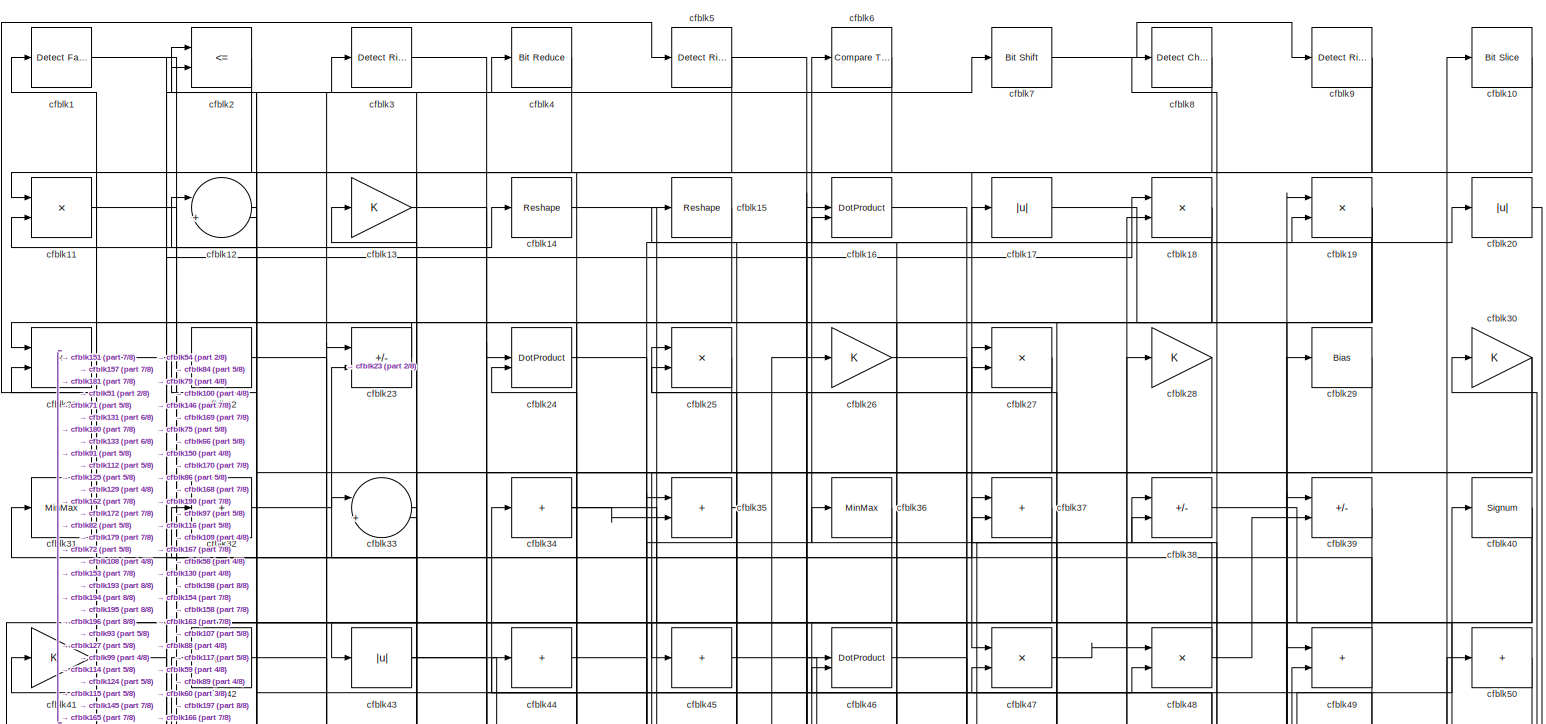
[diagram: root canvas - part 1/8, full width, top band]
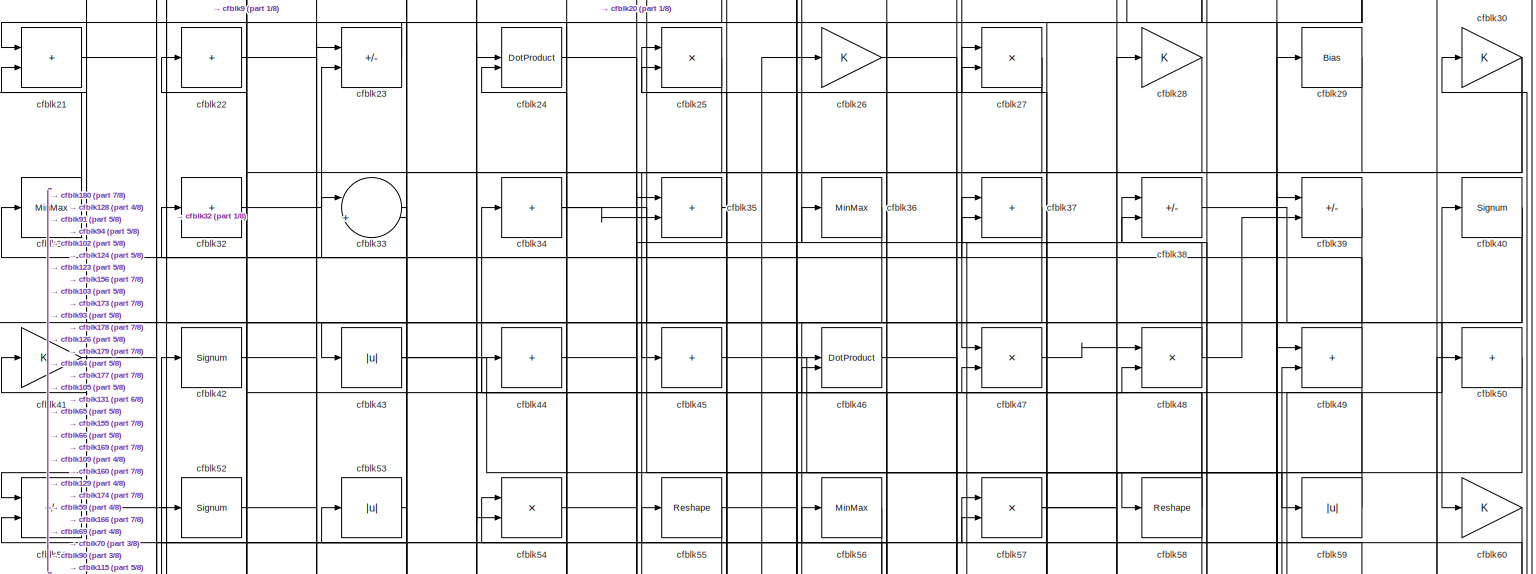
[diagram: root canvas - part 2/8, full width, top band]
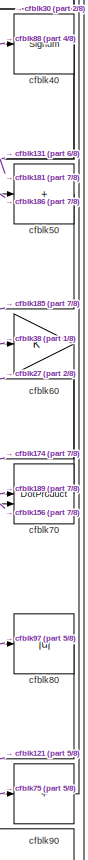
[diagram: root canvas - part 3/8, top right region]
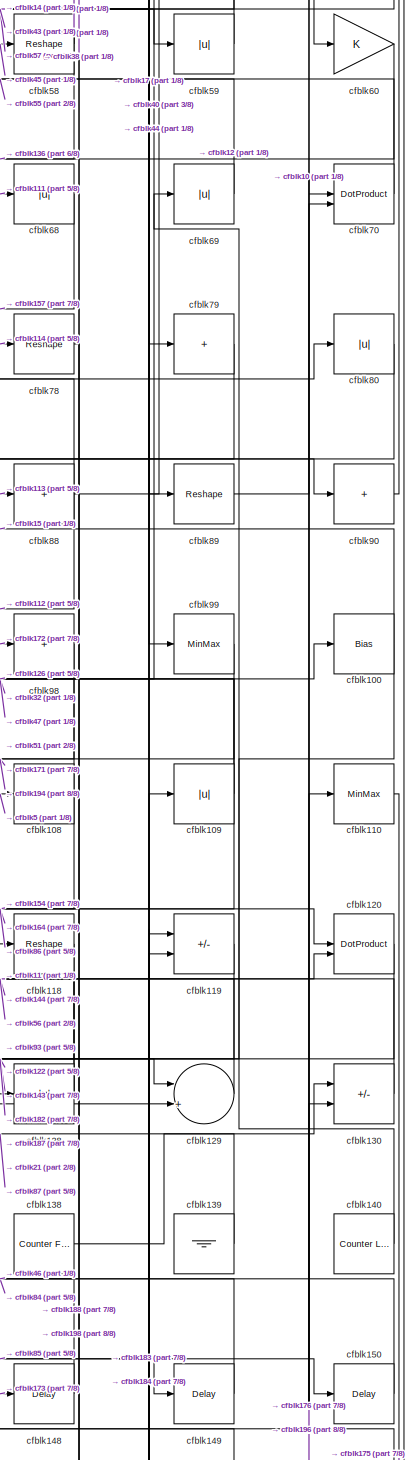
[diagram: root canvas - part 4/8, middle right region]
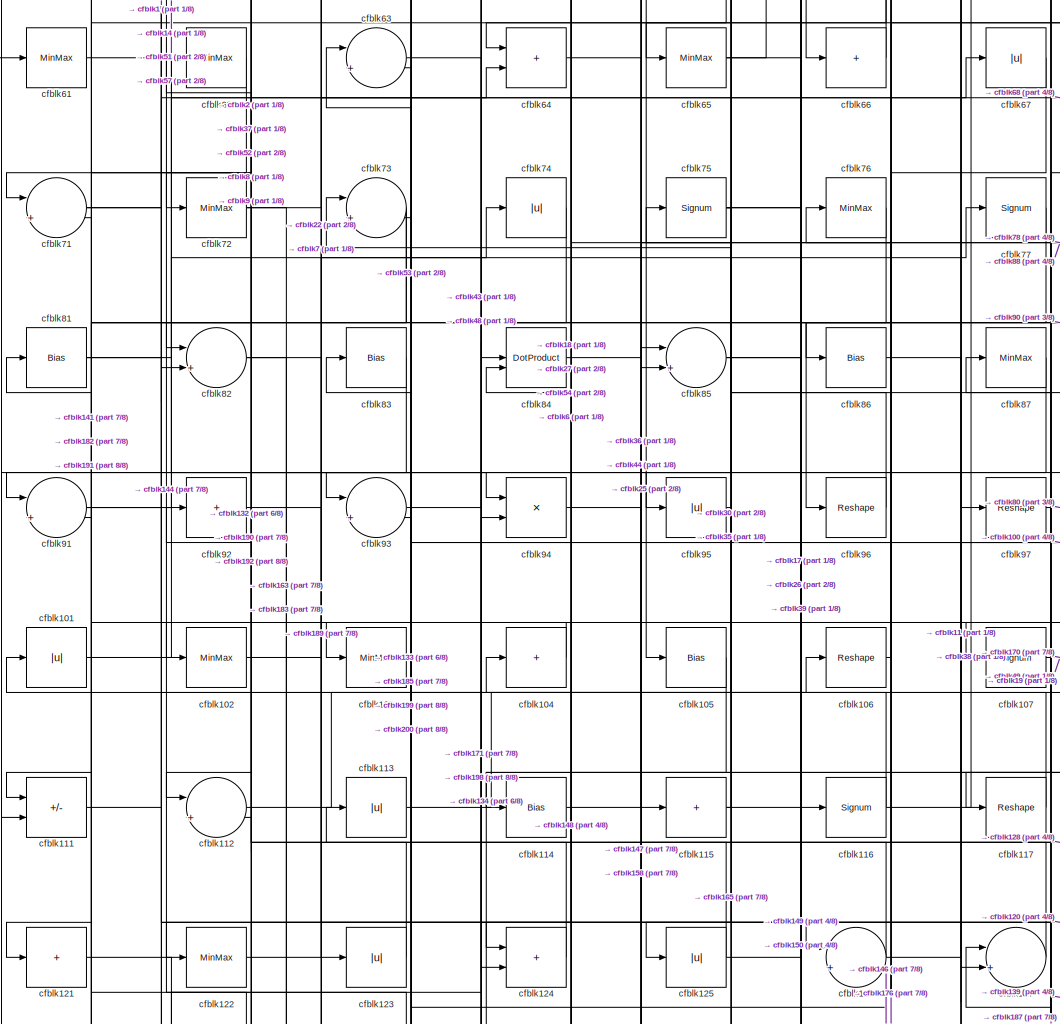
[diagram: root canvas - part 5/8, central region]
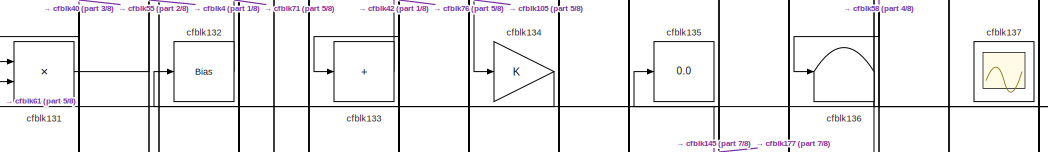
[diagram: root canvas - part 6/8, bottom center region]
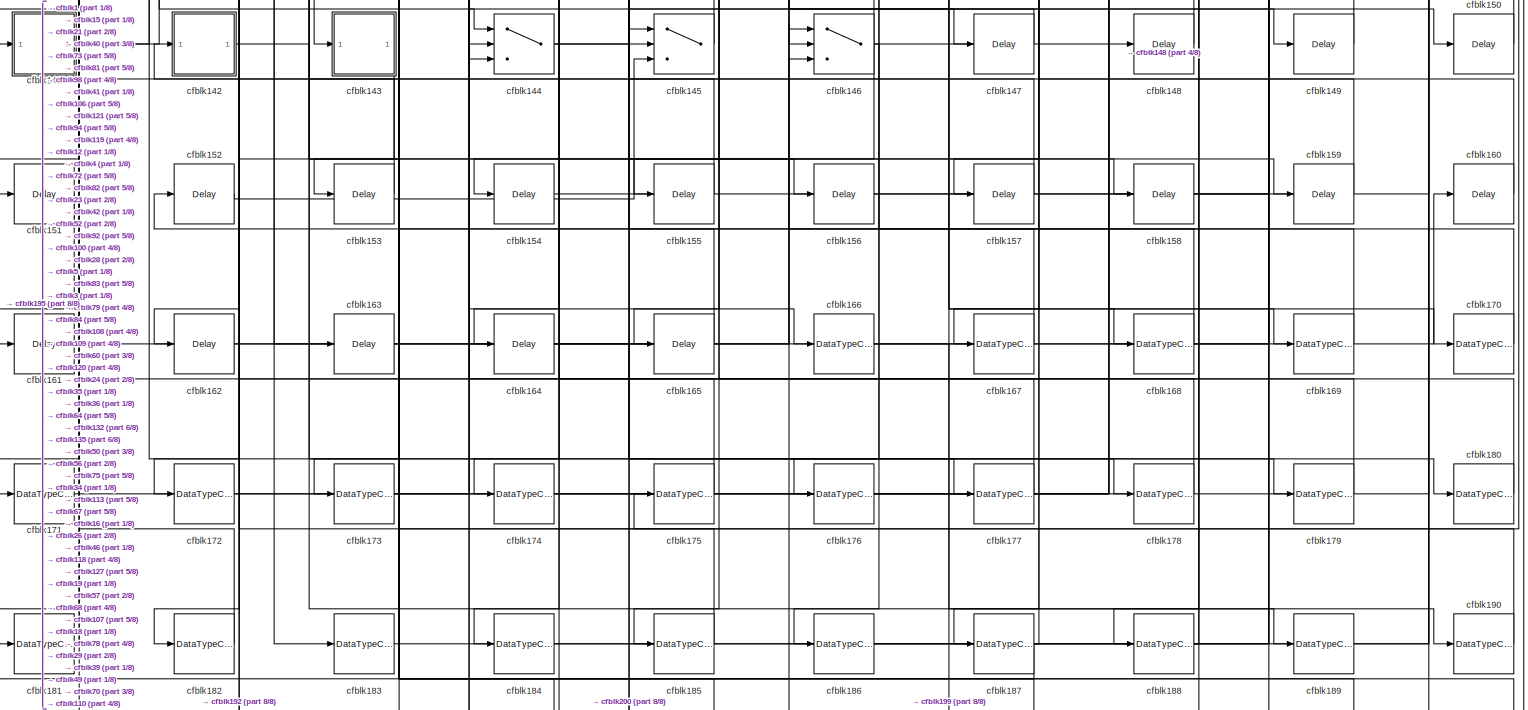
[diagram: root canvas - part 7/8, full width, bottom band]
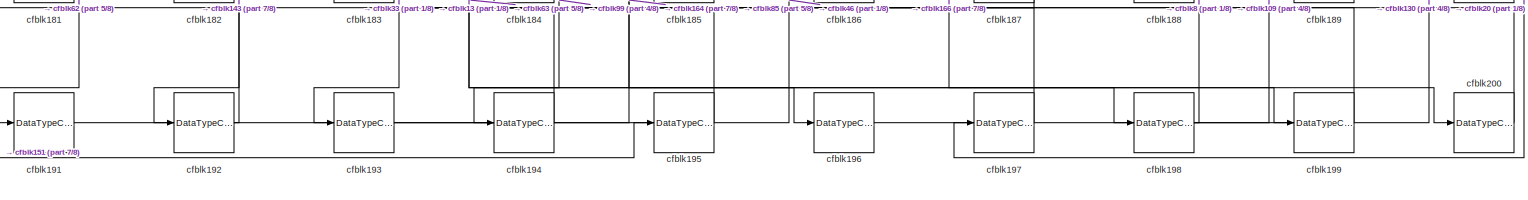
[diagram: root canvas - part 8/8, full width, bottom band]
MODEL slx_806e31ba4209
KIND model
CONFIG AbsTol = auto
CONFIG EnableMultiTasking = off
CONFIG FixedStep = auto
CONFIG MaxStep = auto
CONFIG MinStep = auto
CONFIG RelTol = 1e-3
CONFIG SampleTimeConstraint = Unconstrained
CONFIG SolverName = VariableStepAuto
CONFIG StartTime = 0.0
CONFIG StopTime = 10.0
BLOCK [Reference] cfblk1  REF=hdlsllib/Logic and Bit
Operations/Detect Fall
Nonpositive
  SourceBlock = hdlsllib/Logic and Bit\nOperations/Detect Fall\nNonpositive
  SourceType = Detect Fall Nonpositive
BLOCK [Reference] cfblk10  REF=hdlsllib/Logic and Bit
Operations/Bit Slice
  SourceBlock = hdlsllib/Logic and Bit\nOperations/Bit Slice
  SourceType = Bit Slice
BLOCK [Bias] cfblk100
  Bias = 0.0
  SaturateOnIntegerOverflow = off
BLOCK [Abs] cfblk101
  SaturateOnIntegerOverflow = off
BLOCK [MinMax] cfblk102
BLOCK [MinMax] cfblk103
BLOCK [Sum] cfblk104
  IconShape = rectangular
  Inputs = +
BLOCK [Bias] cfblk105
  Bias = 0.0
  SaturateOnIntegerOverflow = off
BLOCK [Reshape] cfblk106
BLOCK [Signum] cfblk107
BLOCK [Sum] cfblk108
  IconShape = rectangular
  Inputs = +
BLOCK [Abs] cfblk109
  SaturateOnIntegerOverflow = off
BLOCK [Product] cfblk11
  Inputs = */
  RndMeth = Zero
  SaturateOnIntegerOverflow = on
BLOCK [MinMax] cfblk110
BLOCK [Sum] cfblk111
  IconShape = rectangular
  Inputs = +-
BLOCK [Sum] cfblk112
  Inputs = |++
BLOCK [Abs] cfblk113
  SaturateOnIntegerOverflow = off
BLOCK [Bias] cfblk114
  Bias = 0.0
  SaturateOnIntegerOverflow = off
BLOCK [Sum] cfblk115
  IconShape = rectangular
  Inputs = +
BLOCK [Signum] cfblk116
BLOCK [Reshape] cfblk117
BLOCK [Reshape] cfblk118
BLOCK [Sum] cfblk119
  IconShape = rectangular
  Inputs = +-
BLOCK [Sum] cfblk12
  Inputs = |++
BLOCK [DotProduct] cfblk120
  OutDataTypeStr = Inherit: Inherit via internal rule
BLOCK [Sum] cfblk121
  IconShape = rectangular
  Inputs = +
BLOCK [MinMax] cfblk122
BLOCK [Abs] cfblk123
  SaturateOnIntegerOverflow = off
BLOCK [Sum] cfblk124
  IconShape = rectangular
BLOCK [Abs] cfblk125
  SaturateOnIntegerOverflow = off
BLOCK [Sum] cfblk126
  Inputs = |++
BLOCK [Sum] cfblk127
  Inputs = |++
BLOCK [Abs] cfblk128
  SaturateOnIntegerOverflow = off
BLOCK [Sum] cfblk129
  Inputs = |++
BLOCK [Gain] cfblk13
BLOCK [Sum] cfblk130
  IconShape = rectangular
  Inputs = +-
BLOCK [Product] cfblk131
  Inputs = */
  RndMeth = Zero
  SaturateOnIntegerOverflow = on
BLOCK [Bias] cfblk132
  Bias = 0.0
  SaturateOnIntegerOverflow = off
BLOCK [Sum] cfblk133
  IconShape = rectangular
  Inputs = +
BLOCK [Gain] cfblk134
BLOCK [Display] cfblk135
  Decimation = 1
BLOCK [Terminator] cfblk136
BLOCK [Scope] cfblk137
  Floating = on
  NumInputPorts = 1
  ScopeSpecificationString = Simulink.scopes.TimeScopeBlockCfg('CurrentConfiguration', extmgr.ConfigurationSet(extmgr.Configuration('Core','General UI',true,'FigureColor',[0.156862745098039 0.156862745098039 0.156862745098039]),extmgr.Configuration('Core','Source UI',true),extmgr.Configuration('Sources','WiredSimulink',true,'DataLoggingVariableName','ScopeData1','DataLoggingSaveFormat','StructureWithTime','DataLoggingLimitDat...<+2713ch>
BLOCK [Reference] cfblk138  REF=hdlsllib/Sources/Counter
Free-Running
  SourceBlock = hdlsllib/Sources/Counter\nFree-Running
  SourceType = Counter Free-Running
BLOCK [Ground] cfblk139
BLOCK [Reshape] cfblk14
BLOCK [Reference] cfblk140  REF=hdlsllib/Sources/Counter
Limited
  SourceBlock = hdlsllib/Sources/Counter\nLimited
  SourceType = Counter Limited
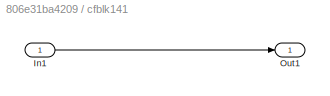
BLOCK [SubSystem] cfblk141
  LibrarySourceBlock = hdlsllib/Ports &\nSubsystems/Subsystem
BLOCK [Inport] cfblk141/In1
BLOCK [Outport] cfblk141/Out1
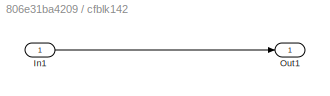
BLOCK [SubSystem] cfblk142
  LibrarySourceBlock = hdlsllib/Ports &\nSubsystems/Subsystem
BLOCK [Inport] cfblk142/In1
BLOCK [Outport] cfblk142/Out1
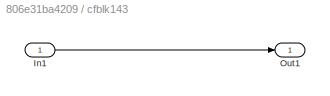
BLOCK [SubSystem] cfblk143
  LibrarySourceBlock = hdlsllib/Ports &\nSubsystems/Subsystem
BLOCK [Inport] cfblk143/In1
BLOCK [Outport] cfblk143/Out1
BLOCK [Switch] cfblk144
  InputSameDT = off
  SaturateOnIntegerOverflow = off
BLOCK [Switch] cfblk145
  InputSameDT = off
  SaturateOnIntegerOverflow = off
BLOCK [Switch] cfblk146
  InputSameDT = off
  SaturateOnIntegerOverflow = off
BLOCK [Delay] cfblk147
  InputPortMap = u0
  SampleTime = 1
BLOCK [Delay] cfblk148
  InputPortMap = u0
  SampleTime = 1
BLOCK [Delay] cfblk149
  InputPortMap = u0
  SampleTime = 1
BLOCK [Reshape] cfblk15
BLOCK [Delay] cfblk150
  InputPortMap = u0
  SampleTime = 1
BLOCK [Delay] cfblk151
  InputPortMap = u0
  SampleTime = 1
BLOCK [Delay] cfblk152
  InputPortMap = u0
  SampleTime = 1
BLOCK [Delay] cfblk153
  InputPortMap = u0
  SampleTime = 1
BLOCK [Delay] cfblk154
  InputPortMap = u0
  SampleTime = 1
BLOCK [Delay] cfblk155
  InputPortMap = u0
  SampleTime = 1
BLOCK [Delay] cfblk156
  InputPortMap = u0
  SampleTime = 1
BLOCK [Delay] cfblk157
  InputPortMap = u0
  SampleTime = 1
BLOCK [Delay] cfblk158
  InputPortMap = u0
  SampleTime = 1
BLOCK [Delay] cfblk159
  InputPortMap = u0
  SampleTime = 1
BLOCK [DotProduct] cfblk16
  OutDataTypeStr = Inherit: Inherit via internal rule
BLOCK [Delay] cfblk160
  InputPortMap = u0
  SampleTime = 1
BLOCK [Delay] cfblk161
  InputPortMap = u0
  SampleTime = 1
BLOCK [Delay] cfblk162
  InputPortMap = u0
  SampleTime = 1
BLOCK [Delay] cfblk163
  InputPortMap = u0
  SampleTime = 1
BLOCK [Delay] cfblk164
  InputPortMap = u0
  SampleTime = 1
BLOCK [Delay] cfblk165
  InputPortMap = u0
  SampleTime = 1
BLOCK [DataTypeConversion] cfblk166
  RndMeth = Floor
  SaturateOnIntegerOverflow = off
BLOCK [DataTypeConversion] cfblk167
  OutDataTypeStr = uint8
  RndMeth = Floor
  SaturateOnIntegerOverflow = off
BLOCK [DataTypeConversion] cfblk168
  RndMeth = Floor
  SaturateOnIntegerOverflow = off
BLOCK [DataTypeConversion] cfblk169
  OutDataTypeStr = uint8
  RndMeth = Floor
  SaturateOnIntegerOverflow = off
BLOCK [Abs] cfblk17
  SaturateOnIntegerOverflow = off
BLOCK [DataTypeConversion] cfblk170
  OutDataTypeStr = uint8
  RndMeth = Floor
  SaturateOnIntegerOverflow = off
BLOCK [DataTypeConversion] cfblk171
  OutDataTypeStr = uint8
  RndMeth = Floor
  SaturateOnIntegerOverflow = off
BLOCK [DataTypeConversion] cfblk172
  OutDataTypeStr = uint8
  RndMeth = Floor
  SaturateOnIntegerOverflow = off
BLOCK [DataTypeConversion] cfblk173
  OutDataTypeStr = uint8
  RndMeth = Floor
  SaturateOnIntegerOverflow = off
BLOCK [DataTypeConversion] cfblk174
  OutDataTypeStr = uint8
  RndMeth = Floor
  SaturateOnIntegerOverflow = off
BLOCK [DataTypeConversion] cfblk175
  OutDataTypeStr = uint8
  RndMeth = Floor
  SaturateOnIntegerOverflow = off
BLOCK [DataTypeConversion] cfblk176
  OutDataTypeStr = uint8
  RndMeth = Floor
  SaturateOnIntegerOverflow = off
BLOCK [DataTypeConversion] cfblk177
  OutDataTypeStr = uint8
  RndMeth = Floor
  SaturateOnIntegerOverflow = off
BLOCK [DataTypeConversion] cfblk178
  OutDataTypeStr = uint8
  RndMeth = Floor
  SaturateOnIntegerOverflow = off
BLOCK [DataTypeConversion] cfblk179
  OutDataTypeStr = uint8
  RndMeth = Floor
  SaturateOnIntegerOverflow = off
BLOCK [Product] cfblk18
  Inputs = */
  RndMeth = Zero
  SaturateOnIntegerOverflow = on
BLOCK [DataTypeConversion] cfblk180
  OutDataTypeStr = uint8
  RndMeth = Floor
  SaturateOnIntegerOverflow = off
BLOCK [DataTypeConversion] cfblk181
  OutDataTypeStr = uint8
  RndMeth = Floor
  SaturateOnIntegerOverflow = off
BLOCK [DataTypeConversion] cfblk182
  OutDataTypeStr = uint8
  RndMeth = Floor
  SaturateOnIntegerOverflow = off
BLOCK [DataTypeConversion] cfblk183
  OutDataTypeStr = uint8
  RndMeth = Floor
  SaturateOnIntegerOverflow = off
BLOCK [DataTypeConversion] cfblk184
  OutDataTypeStr = uint8
  RndMeth = Floor
  SaturateOnIntegerOverflow = off
BLOCK [DataTypeConversion] cfblk185
  OutDataTypeStr = uint8
  RndMeth = Floor
  SaturateOnIntegerOverflow = off
BLOCK [DataTypeConversion] cfblk186
  OutDataTypeStr = uint8
  RndMeth = Floor
  SaturateOnIntegerOverflow = off
BLOCK [DataTypeConversion] cfblk187
  RndMeth = Floor
  SaturateOnIntegerOverflow = off
BLOCK [DataTypeConversion] cfblk188
  OutDataTypeStr = uint8
  RndMeth = Floor
  SaturateOnIntegerOverflow = off
BLOCK [DataTypeConversion] cfblk189
  OutDataTypeStr = uint8
  RndMeth = Floor
  SaturateOnIntegerOverflow = off
BLOCK [Product] cfblk19
  Inputs = */
  RndMeth = Zero
  SaturateOnIntegerOverflow = on
BLOCK [DataTypeConversion] cfblk190
  OutDataTypeStr = uint8
  RndMeth = Floor
  SaturateOnIntegerOverflow = off
BLOCK [DataTypeConversion] cfblk191
  OutDataTypeStr = uint8
  RndMeth = Floor
  SaturateOnIntegerOverflow = off
BLOCK [DataTypeConversion] cfblk192
  OutDataTypeStr = uint8
  RndMeth = Floor
  SaturateOnIntegerOverflow = off
BLOCK [DataTypeConversion] cfblk193
  OutDataTypeStr = uint8
  RndMeth = Floor
  SaturateOnIntegerOverflow = off
BLOCK [DataTypeConversion] cfblk194
  OutDataTypeStr = uint8
  RndMeth = Floor
  SaturateOnIntegerOverflow = off
BLOCK [DataTypeConversion] cfblk195
  OutDataTypeStr = uint8
  RndMeth = Floor
  SaturateOnIntegerOverflow = off
BLOCK [DataTypeConversion] cfblk196
  OutDataTypeStr = uint8
  RndMeth = Floor
  SaturateOnIntegerOverflow = off
BLOCK [DataTypeConversion] cfblk197
  OutDataTypeStr = uint8
  RndMeth = Floor
  SaturateOnIntegerOverflow = off
BLOCK [DataTypeConversion] cfblk198
  RndMeth = Floor
  SaturateOnIntegerOverflow = off
BLOCK [DataTypeConversion] cfblk199
  OutDataTypeStr = uint8
  RndMeth = Floor
  SaturateOnIntegerOverflow = off
BLOCK [RelationalOperator] cfblk2
  InputSameDT = off
  Operator = <=
  OutDataTypeStr = boolean
BLOCK [Abs] cfblk20
  SaturateOnIntegerOverflow = off
BLOCK [DataTypeConversion] cfblk200
  OutDataTypeStr = uint8
  RndMeth = Floor
  SaturateOnIntegerOverflow = off
BLOCK [Sum] cfblk21
  IconShape = rectangular
BLOCK [Sum] cfblk22
  IconShape = rectangular
  Inputs = +
BLOCK [Sum] cfblk23
  IconShape = rectangular
  Inputs = +-
BLOCK [DotProduct] cfblk24
  OutDataTypeStr = Inherit: Inherit via internal rule
BLOCK [Product] cfblk25
  Inputs = */
  RndMeth = Zero
  SaturateOnIntegerOverflow = on
BLOCK [Gain] cfblk26
BLOCK [Product] cfblk27
  Inputs = */
  RndMeth = Zero
  SaturateOnIntegerOverflow = on
BLOCK [Gain] cfblk28
BLOCK [Bias] cfblk29
  Bias = 0.0
  SaturateOnIntegerOverflow = off
BLOCK [Reference] cfblk3  REF=hdlsllib/Logic and Bit
Operations/Detect Rise
Positive
  SourceBlock = hdlsllib/Logic and Bit\nOperations/Detect Rise\nPositive
  SourceType = Detect Rise Positive
BLOCK [Gain] cfblk30
BLOCK [MinMax] cfblk31
BLOCK [Sum] cfblk32
  IconShape = rectangular
  Inputs = +
BLOCK [Sum] cfblk33
  Inputs = |++
BLOCK [Sum] cfblk34
  IconShape = rectangular
  Inputs = +
BLOCK [Sum] cfblk35
  IconShape = rectangular
BLOCK [MinMax] cfblk36
BLOCK [Sum] cfblk37
  IconShape = rectangular
BLOCK [Sum] cfblk38
  IconShape = rectangular
  Inputs = +-
BLOCK [Sum] cfblk39
  IconShape = rectangular
  Inputs = +-
BLOCK [Reference] cfblk4  REF=hdlsllib/Logic and Bit
Operations/Bit Reduce
  SourceBlock = hdlsllib/Logic and Bit\nOperations/Bit Reduce
  SourceType = Bit Reduce
BLOCK [Signum] cfblk40
BLOCK [Gain] cfblk41
BLOCK [Signum] cfblk42
BLOCK [Abs] cfblk43
  SaturateOnIntegerOverflow = off
BLOCK [Sum] cfblk44
  IconShape = rectangular
  Inputs = +
BLOCK [Sum] cfblk45
  IconShape = rectangular
  Inputs = +
BLOCK [DotProduct] cfblk46
  OutDataTypeStr = Inherit: Inherit via internal rule
BLOCK [Product] cfblk47
  Inputs = */
  RndMeth = Zero
  SaturateOnIntegerOverflow = on
BLOCK [Product] cfblk48
  Inputs = */
  RndMeth = Zero
  SaturateOnIntegerOverflow = on
BLOCK [Sum] cfblk49
  IconShape = rectangular
BLOCK [Reference] cfblk5  REF=hdlsllib/Logic and Bit
Operations/Detect Rise
Positive
  SourceBlock = hdlsllib/Logic and Bit\nOperations/Detect Rise\nPositive
  SourceType = Detect Rise Positive
BLOCK [Sum] cfblk50
  IconShape = rectangular
  Inputs = +
BLOCK [Sum] cfblk51
  IconShape = rectangular
  Inputs = +-
BLOCK [Signum] cfblk52
BLOCK [Abs] cfblk53
  SaturateOnIntegerOverflow = off
BLOCK [Product] cfblk54
  Inputs = */
  RndMeth = Zero
  SaturateOnIntegerOverflow = on
BLOCK [Reshape] cfblk55
BLOCK [MinMax] cfblk56
BLOCK [Product] cfblk57
  Inputs = */
  RndMeth = Zero
  SaturateOnIntegerOverflow = on
BLOCK [Reshape] cfblk58
BLOCK [Abs] cfblk59
  SaturateOnIntegerOverflow = off
BLOCK [Reference] cfblk6  REF=hdlsllib/Logic and Bit
Operations/Compare
To Zero
  SourceBlock = hdlsllib/Logic and Bit\nOperations/Compare\nTo Zero
  SourceType = Compare To Zero
BLOCK [Gain] cfblk60
BLOCK [MinMax] cfblk61
BLOCK [MinMax] cfblk62
BLOCK [Sum] cfblk63
  Inputs = |++
BLOCK [Sum] cfblk64
  IconShape = rectangular
BLOCK [MinMax] cfblk65
BLOCK [Sum] cfblk66
  IconShape = rectangular
  Inputs = +
BLOCK [Abs] cfblk67
  SaturateOnIntegerOverflow = off
BLOCK [Abs] cfblk68
  SaturateOnIntegerOverflow = off
BLOCK [Abs] cfblk69
  SaturateOnIntegerOverflow = off
BLOCK [Reference] cfblk7  REF=hdlsllib/Logic and Bit
Operations/Bit Shift
  SourceBlock = hdlsllib/Logic and Bit\nOperations/Bit Shift
  SourceType = Bit Shift
BLOCK [DotProduct] cfblk70
  OutDataTypeStr = Inherit: Inherit via internal rule
BLOCK [Sum] cfblk71
  Inputs = |++
BLOCK [MinMax] cfblk72
BLOCK [Sum] cfblk73
  Inputs = |++
BLOCK [Abs] cfblk74
  SaturateOnIntegerOverflow = off
BLOCK [Signum] cfblk75
BLOCK [MinMax] cfblk76
BLOCK [Signum] cfblk77
BLOCK [Reshape] cfblk78
BLOCK [Sum] cfblk79
  IconShape = rectangular
  Inputs = +
BLOCK [Reference] cfblk8  REF=simulink/Logic and Bit
Operations/Detect
Change
  LibrarySourceBlock = hdlsllib/Logic and Bit\nOperations/Detect\nChange
  SourceBlock = simulink/Logic and Bit\nOperations/Detect\nChange
  SourceType = Detect Change
BLOCK [Abs] cfblk80
  SaturateOnIntegerOverflow = off
BLOCK [Bias] cfblk81
  Bias = 0.0
  SaturateOnIntegerOverflow = off
BLOCK [Sum] cfblk82
  Inputs = |++
BLOCK [Bias] cfblk83
  Bias = 0.0
  SaturateOnIntegerOverflow = off
BLOCK [DotProduct] cfblk84
  OutDataTypeStr = Inherit: Inherit via internal rule
BLOCK [Sum] cfblk85
  Inputs = |++
BLOCK [Bias] cfblk86
  Bias = 0.0
  SaturateOnIntegerOverflow = off
BLOCK [MinMax] cfblk87
BLOCK [Sum] cfblk88
  IconShape = rectangular
  Inputs = +
BLOCK [Reshape] cfblk89
BLOCK [Reference] cfblk9  REF=hdlsllib/Logic and Bit
Operations/Detect Rise
Positive
  SourceBlock = hdlsllib/Logic and Bit\nOperations/Detect Rise\nPositive
  SourceType = Detect Rise Positive
BLOCK [Sum] cfblk90
  IconShape = rectangular
  Inputs = +
BLOCK [Sum] cfblk91
  Inputs = |++
BLOCK [Sum] cfblk92
  IconShape = rectangular
  Inputs = +
BLOCK [Sum] cfblk93
  Inputs = |++
BLOCK [Product] cfblk94
  Inputs = */
  RndMeth = Zero
  SaturateOnIntegerOverflow = on
BLOCK [Abs] cfblk95
  SaturateOnIntegerOverflow = off
BLOCK [Reshape] cfblk96
BLOCK [Reshape] cfblk97
BLOCK [Sum] cfblk98
  IconShape = rectangular
  Inputs = +
BLOCK [MinMax] cfblk99
NET cfblk100:1 -> cfblk143:1, cfblk15:1
LINE cfblk101:1 -> cfblk77:1
LINE cfblk102:1 -> cfblk74:1
LINE cfblk103:1 -> cfblk53:1
LINE cfblk104:1 -> cfblk103:1
LINE cfblk105:1 -> cfblk134:1
LINE cfblk106:1 -> cfblk76:1
NET cfblk107:1 -> cfblk170:1, cfblk49:2
NET cfblk108:1 -> cfblk154:1, cfblk32:1
NET cfblk109:1 -> cfblk164:1, cfblk47:2, cfblk51:2
LINE cfblk10:1 -> cfblk47:1
LINE cfblk110:1 -> cfblk175:1
LINE cfblk111:1 -> cfblk68:1
LINE cfblk112:1 -> cfblk85:1
LINE cfblk113:1 -> cfblk88:1
LINE cfblk114:1 -> cfblk78:1
NET cfblk115:1 -> cfblk19:2, cfblk25:1
NET cfblk116:1 -> cfblk38:1, cfblk75:1
LINE cfblk117:1 -> cfblk2:1
LINE cfblk118:1 -> cfblk187:1
LINE cfblk119:1 -> cfblk182:1
LINE cfblk11:1 -> cfblk97:1
LINE cfblk120:1 -> cfblk122:1
LINE cfblk121:1 -> cfblk144:1
LINE cfblk122:1 -> cfblk64:2
LINE cfblk123:1 -> cfblk101:1
LINE cfblk124:1 -> cfblk52:1
NET cfblk125:1 -> cfblk116:1, cfblk2:2
NET cfblk126:1 -> cfblk100:1, cfblk54:1
LINE cfblk127:1 -> cfblk73:2
NET cfblk128:1 -> cfblk56:1, cfblk93:2
LINE cfblk129:1 -> cfblk11:2
LINE cfblk12:1 -> cfblk172:1
LINE cfblk130:1 -> cfblk38:2
LINE cfblk131:1 -> cfblk4:1
LINE cfblk132:1 -> cfblk71:2
LINE cfblk133:1 -> cfblk42:1
LINE cfblk134:1 -> cfblk61:1
LINE cfblk138:1 -> cfblk130:1
LINE cfblk139:1 -> cfblk87:1
LINE cfblk13:1 -> cfblk196:1
LINE cfblk140:1 -> cfblk69:1
LINE cfblk141/In1:1 -> cfblk141/Out1:1
NET cfblk141:1 -> cfblk106:1, cfblk94:2
LINE cfblk142/In1:1 -> cfblk142/Out1:1
LINE cfblk142:1 -> cfblk159:1
LINE cfblk143/In1:1 -> cfblk143/Out1:1
LINE cfblk143:1 -> cfblk192:1
NET cfblk144:1 -> cfblk120:2, cfblk178:1
LINE cfblk145:1 -> cfblk132:1
NET cfblk146:1 -> cfblk113:1, cfblk184:1, cfblk186:1, cfblk18:2
LINE cfblk147:1 -> cfblk144:2
LINE cfblk148:1 -> cfblk84:2
LINE cfblk149:1 -> cfblk126:2
LINE cfblk14:1 -> cfblk79:1
LINE cfblk150:1 -> cfblk46:2
LINE cfblk151:1 -> cfblk195:1
LINE cfblk152:1 -> cfblk145:3
LINE cfblk153:1 -> cfblk12:2
LINE cfblk154:1 -> cfblk49:1
LINE cfblk155:1 -> cfblk23:1
LINE cfblk156:1 -> cfblk70:2
LINE cfblk157:1 -> cfblk1:1
LINE cfblk158:1 -> cfblk39:1
LINE cfblk159:1 -> cfblk145:1
LINE cfblk15:1 -> cfblk151:1
LINE cfblk160:1 -> cfblk57:2
LINE cfblk161:1 -> cfblk146:3
LINE cfblk162:1 -> cfblk146:1
LINE cfblk163:1 -> cfblk19:1
LINE cfblk164:1 -> cfblk200:1
LINE cfblk165:1 -> cfblk35:1
NET cfblk166:1 -> cfblk199:1, cfblk29:1
LINE cfblk167:1 -> cfblk3:1
NET cfblk168:1 -> cfblk142:1, cfblk160:1
LINE cfblk169:1 -> cfblk16:1
LINE cfblk16:1 -> cfblk168:1
LINE cfblk170:1 -> cfblk16:2
LINE cfblk171:1 -> cfblk84:1
LINE cfblk172:1 -> cfblk98:1
LINE cfblk173:1 -> cfblk148:1
LINE cfblk174:1 -> cfblk28:1
LINE cfblk175:1 -> cfblk152:1
LINE cfblk176:1 -> cfblk110:1
LINE cfblk177:1 -> cfblk135:1
LINE cfblk178:1 -> cfblk24:1
LINE cfblk179:1 -> cfblk24:2
LINE cfblk17:1 -> cfblk89:1
LINE cfblk180:1 -> cfblk21:2
LINE cfblk181:1 -> cfblk41:1
LINE cfblk182:1 -> cfblk81:1
LINE cfblk183:1 -> cfblk119:1
LINE cfblk184:1 -> cfblk119:2
LINE cfblk185:1 -> cfblk83:1
LINE cfblk186:1 -> cfblk50:1
NET cfblk187:1 -> cfblk127:1, cfblk161:1
LINE cfblk188:1 -> cfblk118:1
LINE cfblk189:1 -> cfblk70:1
NET cfblk18:1 -> cfblk114:1, cfblk43:1
LINE cfblk190:1 -> cfblk92:1
LINE cfblk191:1 -> cfblk85:2
LINE cfblk192:1 -> cfblk62:1
LINE cfblk193:1 -> cfblk46:1
LINE cfblk194:1 -> cfblk33:1
LINE cfblk195:1 -> cfblk33:2
LINE cfblk196:1 -> cfblk130:2
LINE cfblk197:1 -> cfblk13:1
NET cfblk198:1 -> cfblk109:1, cfblk8:1
LINE cfblk199:1 -> cfblk63:1
NET cfblk19:1 -> cfblk167:1, cfblk72:1, cfblk86:1
NET cfblk1:1 -> cfblk124:2, cfblk45:1
LINE cfblk200:1 -> cfblk63:2
LINE cfblk20:1 -> cfblk197:1
LINE cfblk21:1 -> cfblk128:1
LINE cfblk22:1 -> cfblk123:1
LINE cfblk23:1 -> cfblk21:1
LINE cfblk24:1 -> cfblk177:1
LINE cfblk25:1 -> cfblk105:1
LINE cfblk26:1 -> cfblk169:1
NET cfblk27:1 -> cfblk25:2, cfblk64:1
LINE cfblk28:1 -> cfblk173:1
LINE cfblk29:1 -> cfblk54:2
LINE cfblk2:1 -> cfblk11:1
NET cfblk30:1 -> cfblk102:1, cfblk65:1
LINE cfblk31:1 -> cfblk5:1
LINE cfblk32:1 -> cfblk23:2
LINE cfblk33:1 -> cfblk193:1
NET cfblk34:1 -> cfblk146:2, cfblk35:2
LINE cfblk35:1 -> cfblk125:1
LINE cfblk36:1 -> cfblk145:2
LINE cfblk37:1 -> cfblk112:1
LINE cfblk38:1 -> cfblk60:1
LINE cfblk39:1 -> cfblk66:1
LINE cfblk3:1 -> cfblk166:1
NET cfblk40:1 -> cfblk131:2, cfblk181:1
LINE cfblk41:1 -> cfblk180:1
LINE cfblk42:1 -> cfblk179:1
NET cfblk43:1 -> cfblk127:2, cfblk99:1
LINE cfblk44:1 -> cfblk115:1
LINE cfblk45:1 -> cfblk58:1
LINE cfblk46:1 -> cfblk190:1
LINE cfblk47:1 -> cfblk48:1
NET cfblk48:1 -> cfblk39:2, cfblk6:1
NET cfblk49:1 -> cfblk117:1, cfblk31:1
LINE cfblk4:1 -> cfblk162:1
LINE cfblk50:1 -> cfblk185:1
LINE cfblk51:1 -> cfblk94:1
LINE cfblk52:1 -> cfblk156:1
LINE cfblk53:1 -> cfblk93:1
LINE cfblk54:1 -> cfblk20:1
NET cfblk55:1 -> cfblk129:1, cfblk131:1
LINE cfblk56:1 -> cfblk155:1
NET cfblk57:1 -> cfblk129:2, cfblk59:1
NET cfblk58:1 -> cfblk136:1, cfblk34:1, cfblk37:2
LINE cfblk59:1 -> cfblk12:1
NET cfblk5:1 -> cfblk108:1, cfblk153:1
LINE cfblk60:1 -> cfblk174:1
LINE cfblk61:1 -> cfblk82:2
LINE cfblk62:1 -> cfblk191:1
LINE cfblk63:1 -> cfblk198:1
LINE cfblk64:1 -> cfblk147:1
NET cfblk65:1 -> cfblk26:1, cfblk27:2
LINE cfblk66:1 -> cfblk22:1
LINE cfblk67:1 -> cfblk176:1
LINE cfblk68:1 -> cfblk157:1
LINE cfblk69:1 -> cfblk55:1
LINE cfblk6:1 -> cfblk124:1
LINE cfblk70:1 -> cfblk27:1
NET cfblk71:1 -> cfblk18:1, cfblk37:1
NET cfblk72:1 -> cfblk163:1, cfblk7:1
NET cfblk73:1 -> cfblk111:1, cfblk141:1
LINE cfblk74:1 -> cfblk91:1
NET cfblk75:1 -> cfblk165:1, cfblk17:1, cfblk90:1, cfblk95:1
LINE cfblk76:1 -> cfblk133:1
LINE cfblk77:1 -> cfblk96:1
LINE cfblk78:1 -> cfblk188:1
LINE cfblk79:1 -> cfblk144:3
LINE cfblk7:1 -> cfblk9:1
LINE cfblk80:1 -> cfblk121:1
NET cfblk81:1 -> cfblk107:1, cfblk67:1
NET cfblk82:1 -> cfblk126:1, cfblk183:1
LINE cfblk83:1 -> cfblk91:2
LINE cfblk84:1 -> cfblk36:1
NET cfblk85:1 -> cfblk149:1, cfblk150:1
LINE cfblk86:1 -> cfblk120:1
LINE cfblk87:1 -> cfblk111:2
NET cfblk88:1 -> cfblk112:2, cfblk40:1, cfblk44:1
LINE cfblk89:1 -> cfblk10:1
LINE cfblk8:1 -> cfblk82:1
LINE cfblk90:1 -> cfblk30:1
NET cfblk91:1 -> cfblk14:1, cfblk57:1
LINE cfblk92:1 -> cfblk189:1
LINE cfblk93:1 -> cfblk48:2
LINE cfblk94:1 -> cfblk158:1
LINE cfblk95:1 -> cfblk104:1
LINE cfblk96:1 -> cfblk73:1
LINE cfblk97:1 -> cfblk80:1
LINE cfblk98:1 -> cfblk171:1
LINE cfblk99:1 -> cfblk194:1
NET cfblk9:1 -> cfblk51:1, cfblk71:1
note: NET lines group one-source signal fan-out (src -> all destinations, sorted); 1:1 wires keep LINE
